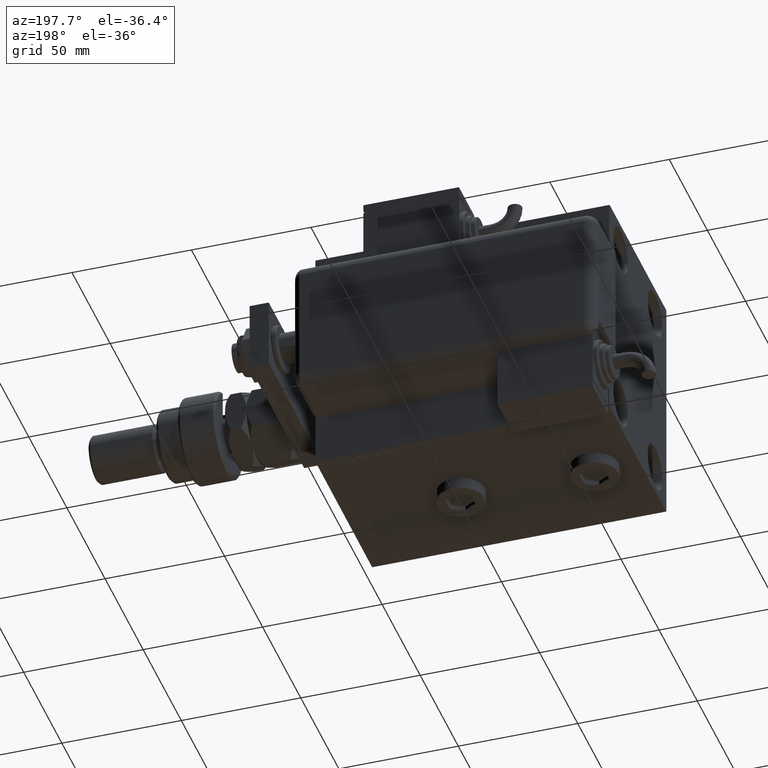
[diagram: clean part render]
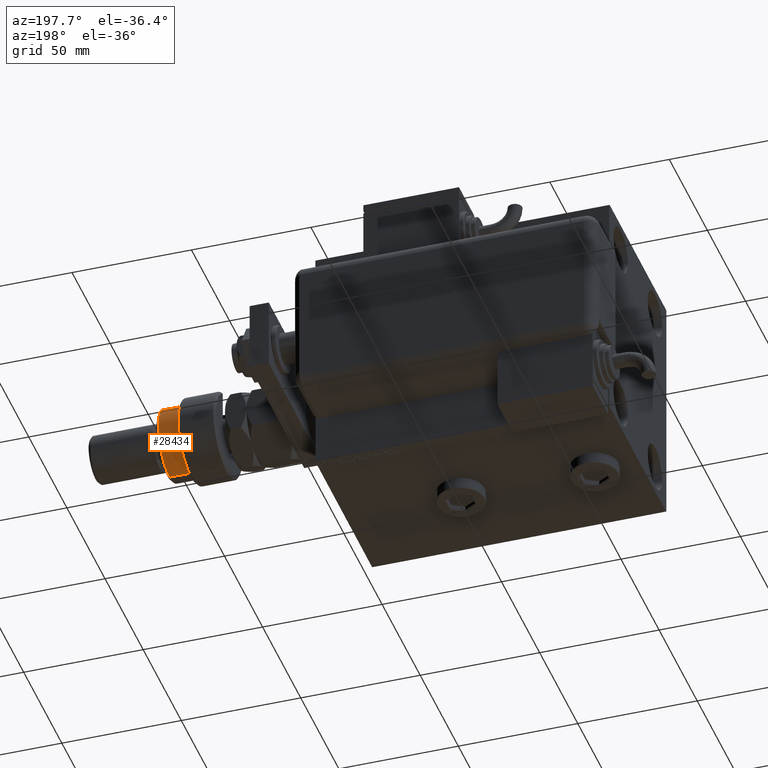
[diagram: same view with one face highlighted and labeled with its STEP entity id]
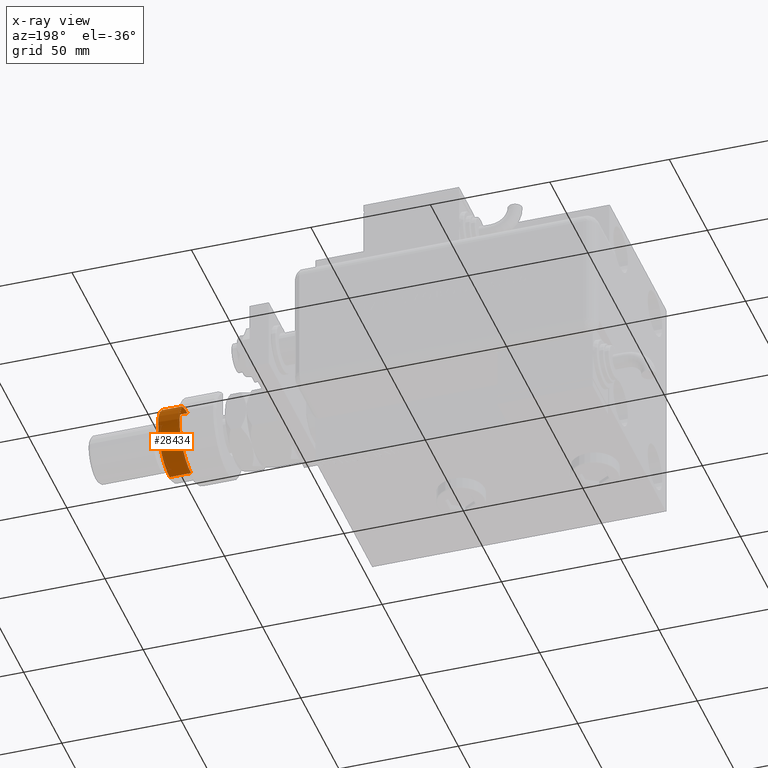
[diagram: x-ray of the same camera — body ghosted, the highlighted face saturated]
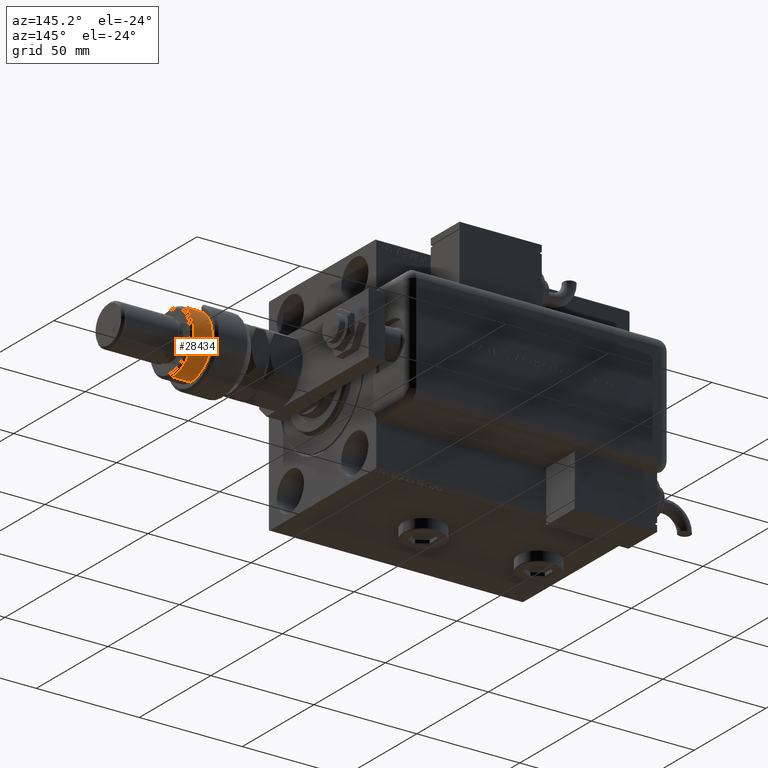
[diagram: same view with one face highlighted and labeled with its STEP entity id]
A machine part, auxiliary view. The second image highlights one B-rep face of the part: STEP entity #28434.
The next image is the same camera in x-ray: the body ghosted, the highlighted face saturated — about 0% of this face is hidden behind the body in this view.
A second angle (auxiliary view) of the same face is appended — the face is thin or edge-on in the first view.
In plain terms, the highlighted cylindrical surface (partial cylindrical patch) has radius 15 mm, axis along (-1, -0, 0).
Its self-contained STEP definition (entity closure, byte-faithful):
#644 = DIRECTION ( 'NONE',  ( -0.000000000000000000, -0.000000000000000000, -1.000000000000000000 ) ) ;
#1276 = ORIENTED_EDGE ( 'NONE', *, *, #34524, .F. ) ;
#6078 = EDGE_CURVE ( 'NONE', #22821, #49939, #21808, .T. ) ;
#6666 = ORIENTED_EDGE ( 'NONE', *, *, #64222, .T. ) ;
#7013 = DIRECTION ( 'NONE',  ( -1.000000000000000000, 0.000000000000000000, 0.000000000000000000 ) ) ;
#7084 = CARTESIAN_POINT ( 'NONE',  ( 0.000000000000000000, 0.000000000000000000, 16.00000000000000000 ) ) ;
#7333 = CARTESIAN_POINT ( 'NONE',  ( 0.000000000000000000, 0.000000000000000000, 17.50000000000000000 ) ) ;
#8809 = CIRCLE ( 'NONE', #26528, 15.00000000000000000 ) ;
#9252 = AXIS2_PLACEMENT_3D ( 'NONE', #13079, #36940, #52272 ) ;
#9700 = CARTESIAN_POINT ( 'NONE',  ( 15.00000000000000000, 1.836970198721029589E-15, 16.00000000000000000 ) ) ;
#10560 = VECTOR ( 'NONE', #27853, 1000.000000000000000 ) ;
#10780 = CARTESIAN_POINT ( 'NONE',  ( 0.000000000000000000, 0.000000000000000000, 26.00000000000000355 ) ) ;
#12856 = LINE ( 'NONE', #32757, #10560 ) ;
#13079 = CARTESIAN_POINT ( 'NONE',  ( 0.000000000000000000, 0.000000000000000000, 24.99999999999997868 ) ) ;
#15230 = CARTESIAN_POINT ( 'NONE',  ( -12.99038105676658006, 7.500000000000000000, 16.00000000000000000 ) ) ;
#15320 = EDGE_CURVE ( 'NONE', #60441, #25040, #18706, .T. ) ;
#16264 = VERTEX_POINT ( 'NONE', #18425 ) ;
#18425 = CARTESIAN_POINT ( 'NONE',  ( -15.00000000000000000, 0.000000000000000000, 17.50000000000000000 ) ) ;
#18706 = CIRCLE ( 'NONE', #49988, 15.00000000000000000 ) ;
#19053 = ORIENTED_EDGE ( 'NONE', *, *, #15320, .T. ) ;
#20316 = LINE ( 'NONE', #51337, #44328 ) ;
#21174 = DIRECTION ( 'NONE',  ( 1.000000000000000000, 0.000000000000000000, 0.000000000000000000 ) ) ;
#21808 = CIRCLE ( 'NONE', #9252, 15.00000000000000000 ) ;
#22223 = LINE ( 'NONE', #37555, #27565 ) ;
#22821 = VERTEX_POINT ( 'NONE', #27523 ) ;
#23617 = EDGE_CURVE ( 'NONE', #22821, #16264, #12856, .T. ) ;
#25040 = VERTEX_POINT ( 'NONE', #15230 ) ;
#26268 = CARTESIAN_POINT ( 'NONE',  ( -12.99038105676658006, 7.500000000000000000, 17.50000000000000000 ) ) ;
#26528 = AXIS2_PLACEMENT_3D ( 'NONE', #7333, #51765, #7013 ) ;
#27523 = CARTESIAN_POINT ( 'NONE',  ( -15.00000000000000000, 0.000000000000000000, 24.99999999999997868 ) ) ;
#27565 = VECTOR ( 'NONE', #42460, 1000.000000000000000 ) ;
#27853 = DIRECTION ( 'NONE',  ( -0.000000000000000000, -0.000000000000000000, -1.000000000000000000 ) ) ;
#28434 = ADVANCED_FACE ( 'NONE', ( #55845 ), #40489, .T. ) ;
#32341 = EDGE_CURVE ( 'NONE', #49939, #60441, #20316, .T. ) ;
#32757 = CARTESIAN_POINT ( 'NONE',  ( -15.00000000000000000, 0.000000000000000000, 26.00000000000000355 ) ) ;
#34524 = EDGE_CURVE ( 'NONE', #16264, #49421, #8809, .T. ) ;
#36408 = ORIENTED_EDGE ( 'NONE', *, *, #32341, .T. ) ;
#36940 = DIRECTION ( 'NONE',  ( 0.000000000000000000, 0.000000000000000000, -1.000000000000000000 ) ) ;
#37555 = CARTESIAN_POINT ( 'NONE',  ( -12.99038105676658006, 7.500000000000000000, 26.00000000000000355 ) ) ;
#38650 = EDGE_LOOP ( 'NONE', ( #53164, #36408, #19053, #6666, #1276, #57429 ) ) ;
#40489 = CYLINDRICAL_SURFACE ( 'NONE', #52491, 15.00000000000000000 ) ;
#42460 = DIRECTION ( 'NONE',  ( 0.000000000000000000, 0.000000000000000000, 1.000000000000000000 ) ) ;
#44328 = VECTOR ( 'NONE', #61149, 1000.000000000000000 ) ;
#46616 = DIRECTION ( 'NONE',  ( 0.000000000000000000, 0.000000000000000000, 1.000000000000000000 ) ) ;
#49421 = VERTEX_POINT ( 'NONE', #26268 ) ;
#49939 = VERTEX_POINT ( 'NONE', #55772 ) ;
#49988 = AXIS2_PLACEMENT_3D ( 'NONE', #7084, #46616, #21174 ) ;
#51337 = CARTESIAN_POINT ( 'NONE',  ( 15.00000000000000000, 1.836970198721029589E-15, 26.00000000000000355 ) ) ;
#51591 = DIRECTION ( 'NONE',  ( -1.000000000000000000, 0.000000000000000000, 0.000000000000000000 ) ) ;
#51765 = DIRECTION ( 'NONE',  ( 0.000000000000000000, 0.000000000000000000, -1.000000000000000000 ) ) ;
#52272 = DIRECTION ( 'NONE',  ( 1.000000000000000000, 0.000000000000000000, 0.000000000000000000 ) ) ;
#52491 = AXIS2_PLACEMENT_3D ( 'NONE', #10780, #644, #51591 ) ;
#53164 = ORIENTED_EDGE ( 'NONE', *, *, #6078, .T. ) ;
#55772 = CARTESIAN_POINT ( 'NONE',  ( 15.00000000000000000, 1.836970198721029589E-15, 24.99999999999997868 ) ) ;
#55845 = FACE_OUTER_BOUND ( 'NONE', #38650, .T. ) ;
#57429 = ORIENTED_EDGE ( 'NONE', *, *, #23617, .F. ) ;
#60441 = VERTEX_POINT ( 'NONE', #9700 ) ;
#61149 = DIRECTION ( 'NONE',  ( -0.000000000000000000, -0.000000000000000000, -1.000000000000000000 ) ) ;
#64222 = EDGE_CURVE ( 'NONE', #25040, #49421, #22223, .T. ) ;